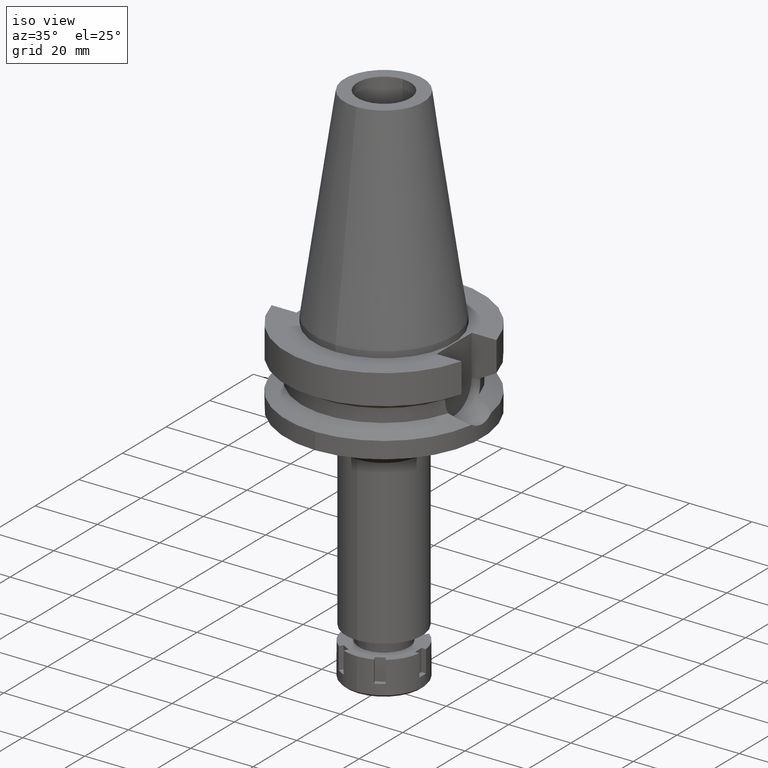
[diagram: clean part render]
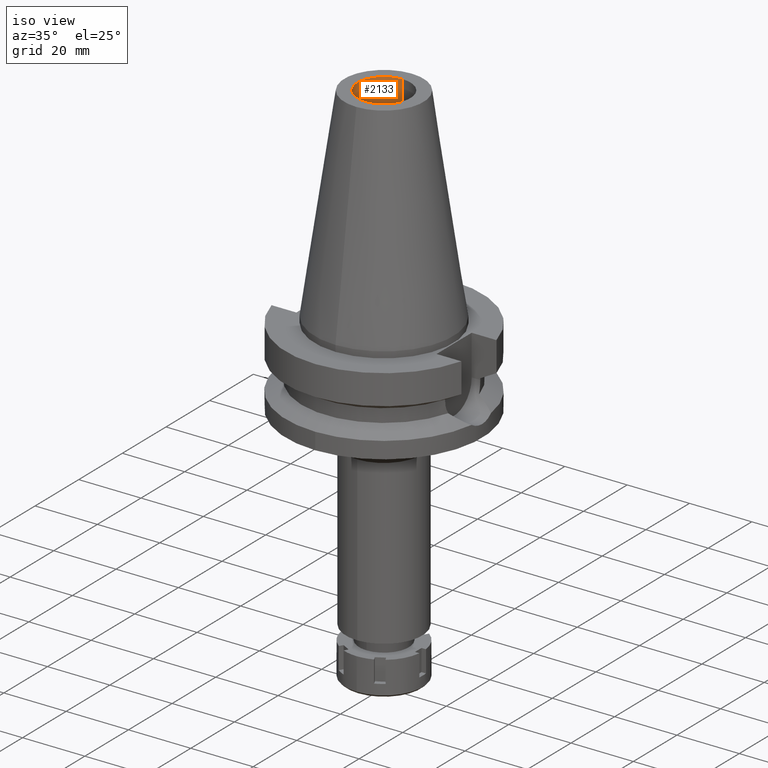
[diagram: same view with one face highlighted and labeled with its STEP entity id]
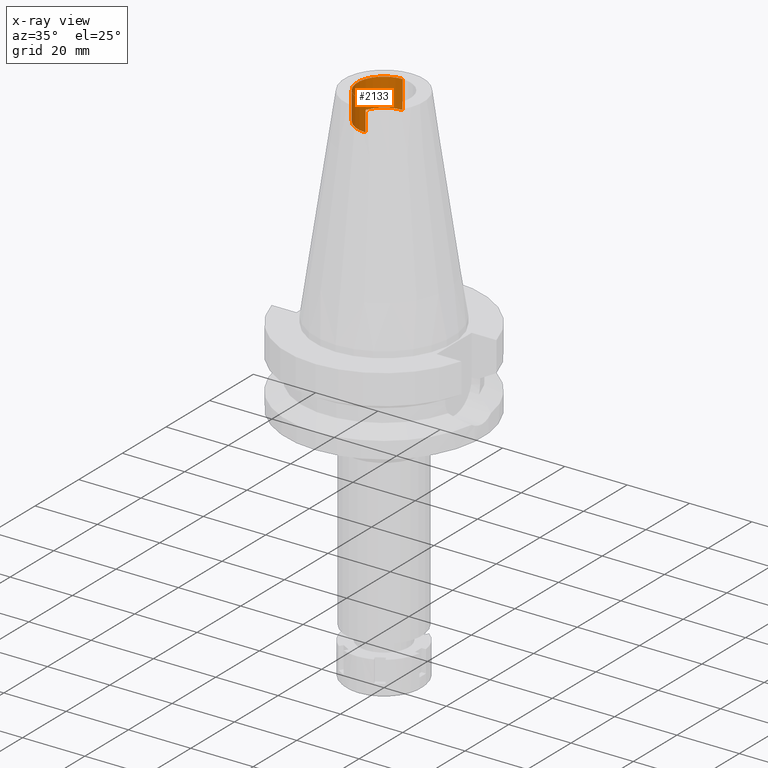
[diagram: x-ray of the same camera — body ghosted, the highlighted face saturated]
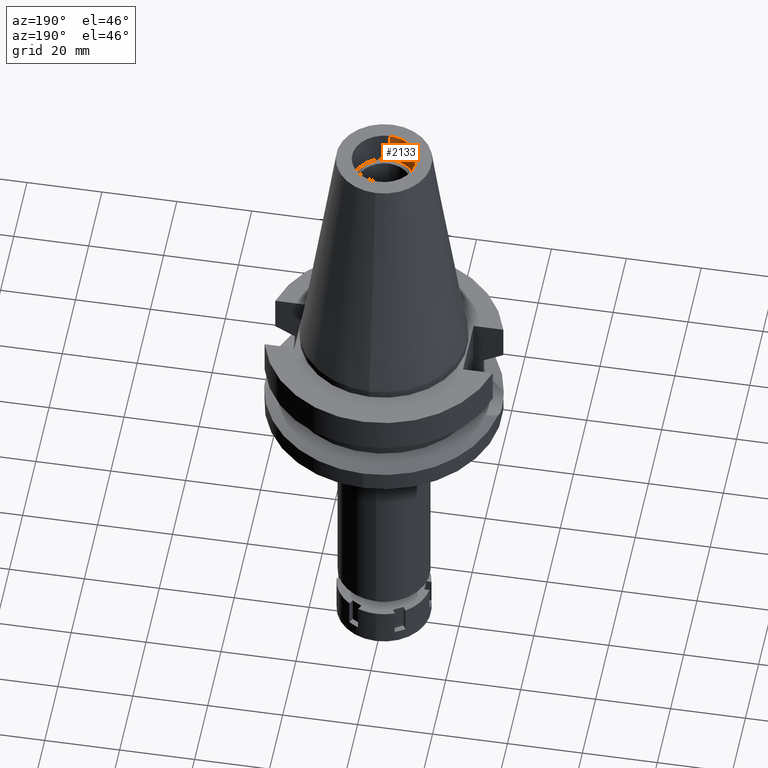
[diagram: same view with one face highlighted and labeled with its STEP entity id]
A machine part, iso view. The second image highlights one B-rep face of the part: STEP entity #2133.
The next image is the same camera in x-ray: the body ghosted, the highlighted face saturated — about 0% of this face is hidden behind the body in this view.
A second angle (auxiliary view) of the same face is appended — the face is thin or edge-on in the first view.
In plain terms, the highlighted cylindrical surface (edge-blend (fillet) strip) has radius 8.5 mm, axis along (0, 0, -1).
Its self-contained STEP definition (entity closure, byte-faithful):
#111 = VERTEX_POINT ( 'NONE', #2407 ) ;
#135 = DIRECTION ( 'NONE',  ( 0.0000000000000000000, -1.000000000000000000, 0.0000000000000000000 ) ) ;
#192 = EDGE_CURVE ( 'NONE', #111, #2670, #2264, .T. ) ;
#323 = VERTEX_POINT ( 'NONE', #2834 ) ;
#553 = CARTESIAN_POINT ( 'NONE',  ( 0.0000000000000000000, -8.500000000000000000, 65.40000000000000568 ) ) ;
#585 = DIRECTION ( 'NONE',  ( 0.0000000000000000000, 0.0000000000000000000, 1.000000000000000000 ) ) ;
#713 = CARTESIAN_POINT ( 'NONE',  ( 0.0000000000000000000, 2.126231772679999832E-14, 65.40000000000000568 ) ) ;
#736 = EDGE_CURVE ( 'NONE', #323, #111, #2580, .T. ) ;
#900 = EDGE_CURVE ( 'NONE', #323, #2744, #2117, .T. ) ;
#925 = EDGE_CURVE ( 'NONE', #2670, #2744, #1687, .T. ) ;
#929 = VECTOR ( 'NONE', #3478, 1000.000000000000000 ) ;
#1169 = CARTESIAN_POINT ( 'NONE',  ( 0.0000000000000000000, 2.126231772679999832E-14, 56.39999999999999858 ) ) ;
#1275 = ORIENTED_EDGE ( 'NONE', *, *, #736, .T. ) ;
#1523 = CARTESIAN_POINT ( 'NONE',  ( 0.0000000000000000000, -8.500000000000000000, 56.39999999999999858 ) ) ;
#1565 = CARTESIAN_POINT ( 'NONE',  ( 0.0000000000000000000, 2.126231772679999832E-14, 73.62000000000000455 ) ) ;
#1632 = CARTESIAN_POINT ( 'NONE',  ( 0.0000000000000000000, 8.500000000000000000, 65.40000000000000568 ) ) ;
#1687 = CIRCLE ( 'NONE', #2991, 8.500000000000000000 ) ;
#1854 = DIRECTION ( 'NONE',  ( 0.0000000000000000000, 0.0000000000000000000, 1.000000000000000000 ) ) ;
#1981 = DIRECTION ( 'NONE',  ( 0.0000000000000000000, 0.0000000000000000000, -1.000000000000000000 ) ) ;
#2110 = AXIS2_PLACEMENT_3D ( 'NONE', #1169, #1981, #2276 ) ;
#2117 = LINE ( 'NONE', #1523, #929 ) ;
#2133 = ADVANCED_FACE ( 'NONE', ( #3254 ), #2425, .F. ) ;
#2175 = ORIENTED_EDGE ( 'NONE', *, *, #192, .T. ) ;
#2264 = LINE ( 'NONE', #3087, #3566 ) ;
#2276 = DIRECTION ( 'NONE',  ( 0.0000000000000000000, -1.000000000000000000, 0.0000000000000000000 ) ) ;
#2407 = CARTESIAN_POINT ( 'NONE',  ( 0.0000000000000000000, 8.500000000000000000, 56.39999999999999858 ) ) ;
#2425 = CYLINDRICAL_SURFACE ( 'NONE', #3198, 8.500000000000000000 ) ;
#2580 = CIRCLE ( 'NONE', #2110, 8.500000000000000000 ) ;
#2645 = ORIENTED_EDGE ( 'NONE', *, *, #900, .F. ) ;
#2670 = VERTEX_POINT ( 'NONE', #1632 ) ;
#2679 = DIRECTION ( 'NONE',  ( 0.0000000000000000000, 0.0000000000000000000, -1.000000000000000000 ) ) ;
#2740 = EDGE_LOOP ( 'NONE', ( #3470, #2645, #1275, #2175 ) ) ;
#2744 = VERTEX_POINT ( 'NONE', #553 ) ;
#2834 = CARTESIAN_POINT ( 'NONE',  ( 0.0000000000000000000, -8.500000000000000000, 56.39999999999999858 ) ) ;
#2991 = AXIS2_PLACEMENT_3D ( 'NONE', #713, #1854, #3249 ) ;
#3087 = CARTESIAN_POINT ( 'NONE',  ( 0.0000000000000000000, 8.500000000000000000, 56.39999999999999858 ) ) ;
#3198 = AXIS2_PLACEMENT_3D ( 'NONE', #1565, #2679, #135 ) ;
#3249 = DIRECTION ( 'NONE',  ( 0.0000000000000000000, 1.000000000000000000, 0.0000000000000000000 ) ) ;
#3254 = FACE_OUTER_BOUND ( 'NONE', #2740, .T. ) ;
#3470 = ORIENTED_EDGE ( 'NONE', *, *, #925, .T. ) ;
#3478 = DIRECTION ( 'NONE',  ( 0.0000000000000000000, 0.0000000000000000000, 1.000000000000000000 ) ) ;
#3566 = VECTOR ( 'NONE', #585, 1000.000000000000000 ) ;